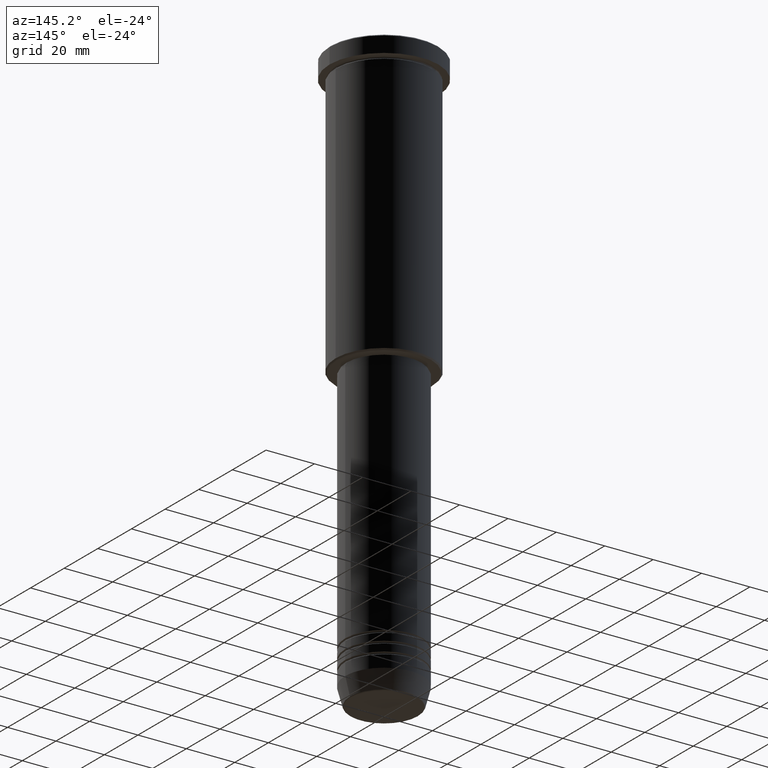
[diagram: clean part render]
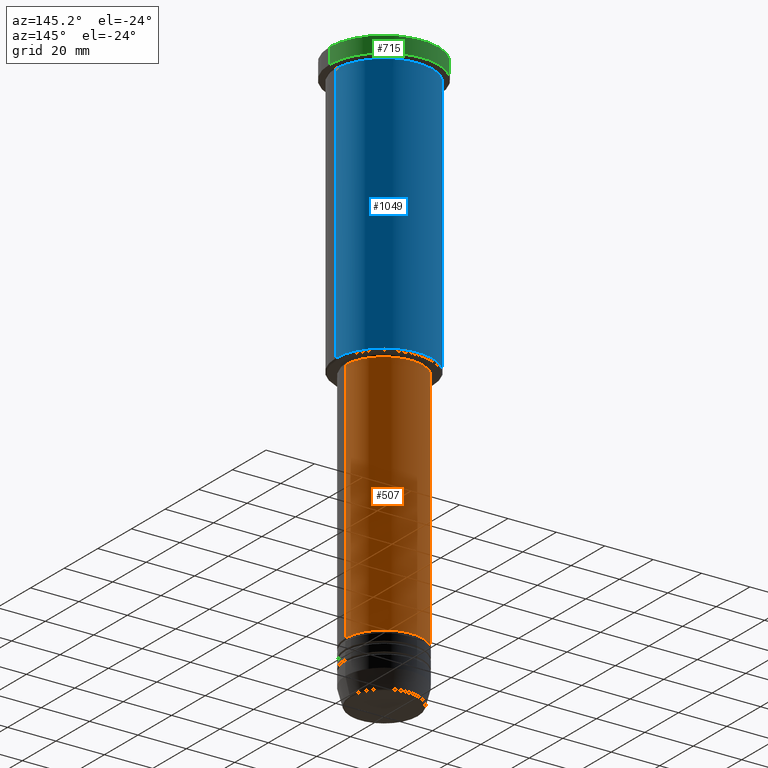
[diagram: same view with three faces highlighted in distinct colors, each labeled with its STEP entity id]
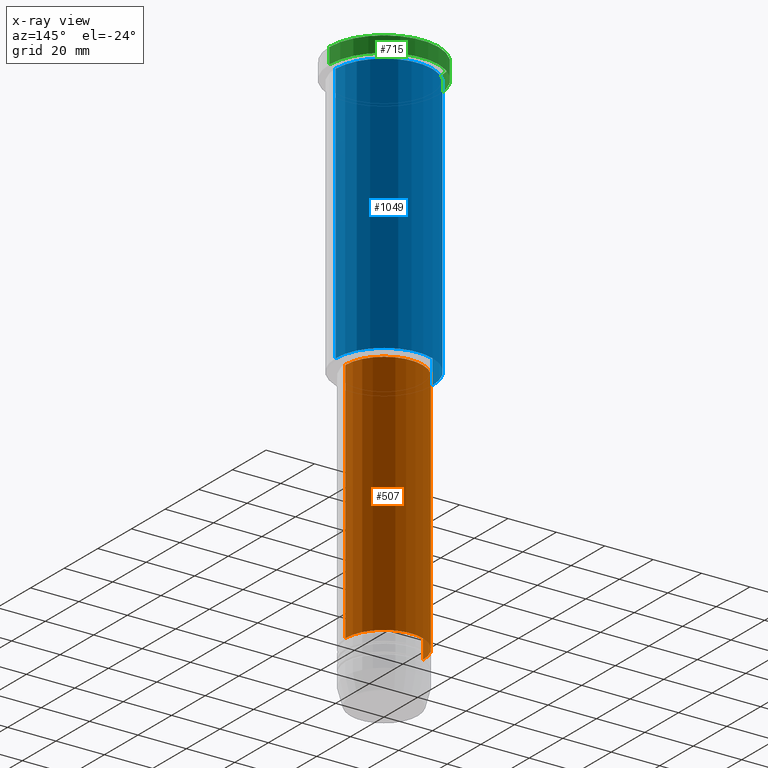
[diagram: x-ray of the same camera — body ghosted, the three highlighted faces saturated]
A machine part, auxiliary view with three faces highlighted in distinct colors.
The next image is the same camera in x-ray (body ghosted, the three faces saturated) — at least one of them is partly hidden behind the body in this view.
Their STEP definitions:

[orange] entity #507 — the highlighted cylindrical surface (partial cylindrical patch) has radius 16 mm, axis along (-0, -0, 1).
#19 = DIRECTION ( 'NONE',  ( -0.000000000000000000, -0.000000000000000000, 1.000000000000000000 ) ) ;
#36 = LINE ( 'NONE', #214, #765 ) ;
#38 = CYLINDRICAL_SURFACE ( 'NONE', #862, 16.00000000000000000 ) ;
#43 = FACE_OUTER_BOUND ( 'NONE', #1123, .T. ) ;
#47 = DIRECTION ( 'NONE',  ( -0.000000000000000000, -0.000000000000000000, 1.000000000000000000 ) ) ;
#63 = ORIENTED_EDGE ( 'NONE', *, *, #977, .F. ) ;
#85 = ORIENTED_EDGE ( 'NONE', *, *, #615, .T. ) ;
#100 = VERTEX_POINT ( 'NONE', #1014 ) ;
#120 = ORIENTED_EDGE ( 'NONE', *, *, #738, .F. ) ;
#143 = LINE ( 'NONE', #511, #1061 ) ;
#145 = AXIS2_PLACEMENT_3D ( 'NONE', #632, #987, #177 ) ;
#177 = DIRECTION ( 'NONE',  ( 1.000000000000000000, 0.000000000000000000, 0.000000000000000000 ) ) ;
#191 = CIRCLE ( 'NONE', #817, 16.00000000000000000 ) ;
#214 = CARTESIAN_POINT ( 'NONE',  ( 16.00000000000000000, 0.000000000000000000, 0.000000000000000000 ) ) ;
#245 = CARTESIAN_POINT ( 'NONE',  ( 16.00000000000000000, 0.000000000000000000, -218.5000000000000000 ) ) ;
#315 = DIRECTION ( 'NONE',  ( 1.000000000000000000, 0.000000000000000000, 0.000000000000000000 ) ) ;
#378 = CIRCLE ( 'NONE', #145, 16.00000000000000000 ) ;
#417 = CARTESIAN_POINT ( 'NONE',  ( -16.00000000000000000, 1.959434878635765131E-15, -218.5000000000000000 ) ) ;
#507 = ADVANCED_FACE ( 'NONE', ( #43 ), #38, .T. ) ;
#511 = CARTESIAN_POINT ( 'NONE',  ( -16.00000000000000000, 1.959434878635765131E-15, 0.000000000000000000 ) ) ;
#537 = VERTEX_POINT ( 'NONE', #417 ) ;
#543 = CARTESIAN_POINT ( 'NONE',  ( 16.00000000000000000, 0.000000000000000000, -117.0000000000000142 ) ) ;
#552 = DIRECTION ( 'NONE',  ( 1.000000000000000000, 0.000000000000000000, 0.000000000000000000 ) ) ;
#557 = VERTEX_POINT ( 'NONE', #245 ) ;
#615 = EDGE_CURVE ( 'NONE', #537, #100, #143, .T. ) ;
#632 = CARTESIAN_POINT ( 'NONE',  ( 0.000000000000000000, 0.000000000000000000, -117.0000000000000142 ) ) ;
#642 = DIRECTION ( 'NONE',  ( -0.000000000000000000, -0.000000000000000000, 1.000000000000000000 ) ) ;
#689 = DIRECTION ( 'NONE',  ( -0.000000000000000000, -0.000000000000000000, 1.000000000000000000 ) ) ;
#738 = EDGE_CURVE ( 'NONE', #745, #100, #378, .T. ) ;
#741 = CARTESIAN_POINT ( 'NONE',  ( 0.000000000000000000, 0.000000000000000000, -218.5000000000000000 ) ) ;
#745 = VERTEX_POINT ( 'NONE', #543 ) ;
#765 = VECTOR ( 'NONE', #19, 1000.000000000000000 ) ;
#817 = AXIS2_PLACEMENT_3D ( 'NONE', #741, #642, #552 ) ;
#862 = AXIS2_PLACEMENT_3D ( 'NONE', #1022, #689, #315 ) ;
#899 = EDGE_CURVE ( 'NONE', #557, #537, #191, .T. ) ;
#977 = EDGE_CURVE ( 'NONE', #557, #745, #36, .T. ) ;
#987 = DIRECTION ( 'NONE',  ( -0.000000000000000000, -0.000000000000000000, 1.000000000000000000 ) ) ;
#1014 = CARTESIAN_POINT ( 'NONE',  ( -16.00000000000000000, 1.959434878635765131E-15, -117.0000000000000142 ) ) ;
#1022 = CARTESIAN_POINT ( 'NONE',  ( 0.000000000000000000, 0.000000000000000000, 0.000000000000000000 ) ) ;
#1061 = VECTOR ( 'NONE', #47, 1000.000000000000000 ) ;
#1081 = ORIENTED_EDGE ( 'NONE', *, *, #899, .T. ) ;
#1123 = EDGE_LOOP ( 'NONE', ( #1081, #85, #120, #63 ) ) ;

[blue] entity #1049 — the highlighted cylindrical surface (partial cylindrical patch) has radius 20 mm, axis along (-0, -0, 1).
#12 = VECTOR ( 'NONE', #613, 1000.000000000000000 ) ;
#40 = ORIENTED_EDGE ( 'NONE', *, *, #385, .F. ) ;
#42 = CARTESIAN_POINT ( 'NONE',  ( 20.00000000000000355, 0.000000000000000000, -115.4999999999999858 ) ) ;
#48 = DIRECTION ( 'NONE',  ( -0.000000000000000000, -0.000000000000000000, 1.000000000000000000 ) ) ;
#125 = FACE_OUTER_BOUND ( 'NONE', #864, .T. ) ;
#144 = AXIS2_PLACEMENT_3D ( 'NONE', #852, #1034, #1044 ) ;
#147 = CARTESIAN_POINT ( 'NONE',  ( 20.00000000000000000, 0.000000000000000000, -7.999999999999994671 ) ) ;
#172 = VECTOR ( 'NONE', #48, 1000.000000000000000 ) ;
#207 = VERTEX_POINT ( 'NONE', #768 ) ;
#212 = ORIENTED_EDGE ( 'NONE', *, *, #403, .T. ) ;
#262 = EDGE_CURVE ( 'NONE', #956, #931, #382, .T. ) ;
#382 = CIRCLE ( 'NONE', #646, 20.00000000000000355 ) ;
#385 = EDGE_CURVE ( 'NONE', #956, #1069, #702, .T. ) ;
#403 = EDGE_CURVE ( 'NONE', #931, #207, #598, .T. ) ;
#471 = ORIENTED_EDGE ( 'NONE', *, *, #492, .F. ) ;
#483 = DIRECTION ( 'NONE',  ( -1.000000000000000000, 0.000000000000000000, 0.000000000000000000 ) ) ;
#487 = DIRECTION ( 'NONE',  ( -0.000000000000000000, -0.000000000000000000, 1.000000000000000000 ) ) ;
#492 = EDGE_CURVE ( 'NONE', #1069, #207, #1130, .T. ) ;
#508 = CARTESIAN_POINT ( 'NONE',  ( 0.000000000000000000, 0.000000000000000000, -115.4999999999999858 ) ) ;
#586 = CARTESIAN_POINT ( 'NONE',  ( 0.000000000000000000, 0.000000000000000000, 0.000000000000000000 ) ) ;
#594 = DIRECTION ( 'NONE',  ( 1.000000000000000000, 0.000000000000000000, 0.000000000000000000 ) ) ;
#598 = LINE ( 'NONE', #793, #172 ) ;
#613 = DIRECTION ( 'NONE',  ( -0.000000000000000000, -0.000000000000000000, 1.000000000000000000 ) ) ;
#646 = AXIS2_PLACEMENT_3D ( 'NONE', #508, #1017, #483 ) ;
#674 = CARTESIAN_POINT ( 'NONE',  ( -20.00000000000000355, 2.449293598294706907E-15, -115.4999999999999858 ) ) ;
#702 = LINE ( 'NONE', #815, #12 ) ;
#768 = CARTESIAN_POINT ( 'NONE',  ( -20.00000000000000000, 2.449293598294706513E-15, -7.999999999999994671 ) ) ;
#793 = CARTESIAN_POINT ( 'NONE',  ( -20.00000000000000355, 2.449293598294706907E-15, 0.000000000000000000 ) ) ;
#815 = CARTESIAN_POINT ( 'NONE',  ( 20.00000000000000355, 0.000000000000000000, 0.000000000000000000 ) ) ;
#852 = CARTESIAN_POINT ( 'NONE',  ( 0.000000000000000000, 0.000000000000000000, -7.999999999999994671 ) ) ;
#864 = EDGE_LOOP ( 'NONE', ( #1153, #212, #471, #40 ) ) ;
#931 = VERTEX_POINT ( 'NONE', #674 ) ;
#956 = VERTEX_POINT ( 'NONE', #42 ) ;
#1017 = DIRECTION ( 'NONE',  ( -0.000000000000000000, -0.000000000000000000, 1.000000000000000000 ) ) ;
#1028 = CYLINDRICAL_SURFACE ( 'NONE', #1042, 20.00000000000000355 ) ;
#1034 = DIRECTION ( 'NONE',  ( -0.000000000000000000, -0.000000000000000000, 1.000000000000000000 ) ) ;
#1042 = AXIS2_PLACEMENT_3D ( 'NONE', #586, #487, #594 ) ;
#1044 = DIRECTION ( 'NONE',  ( 1.000000000000000000, 0.000000000000000000, 0.000000000000000000 ) ) ;
#1049 = ADVANCED_FACE ( 'NONE', ( #125 ), #1028, .T. ) ;
#1069 = VERTEX_POINT ( 'NONE', #147 ) ;
#1130 = CIRCLE ( 'NONE', #144, 20.00000000000000000 ) ;
#1153 = ORIENTED_EDGE ( 'NONE', *, *, #262, .T. ) ;

[green] entity #715 — the highlighted cylindrical surface (partial cylindrical patch) has radius 22.5 mm, axis along (-0, -0, 1).
#7 = LINE ( 'NONE', #461, #535 ) ;
#34 = ORIENTED_EDGE ( 'NONE', *, *, #413, .T. ) ;
#53 = CARTESIAN_POINT ( 'NONE',  ( 22.50000000000000000, 0.000000000000000000, -0.5000000000000490719 ) ) ;
#59 = AXIS2_PLACEMENT_3D ( 'NONE', #153, #796, #1059 ) ;
#65 = DIRECTION ( 'NONE',  ( -0.000000000000000000, -0.000000000000000000, 1.000000000000000000 ) ) ;
#76 = FACE_OUTER_BOUND ( 'NONE', #1084, .T. ) ;
#97 = EDGE_CURVE ( 'NONE', #545, #587, #7, .T. ) ;
#150 = EDGE_CURVE ( 'NONE', #441, #587, #209, .T. ) ;
#153 = CARTESIAN_POINT ( 'NONE',  ( 0.000000000000000000, 0.000000000000000000, 0.000000000000000000 ) ) ;
#209 = CIRCLE ( 'NONE', #759, 22.50000000000000000 ) ;
#235 = DIRECTION ( 'NONE',  ( 1.000000000000000000, 0.000000000000000000, 0.000000000000000000 ) ) ;
#299 = DIRECTION ( 'NONE',  ( -0.000000000000000000, -0.000000000000000000, 1.000000000000000000 ) ) ;
#312 = ORIENTED_EDGE ( 'NONE', *, *, #150, .T. ) ;
#351 = VERTEX_POINT ( 'NONE', #449 ) ;
#359 = CYLINDRICAL_SURFACE ( 'NONE', #59, 22.50000000000000000 ) ;
#387 = CARTESIAN_POINT ( 'NONE',  ( -22.50000000000000000, 2.755455298081544778E-15, 0.000000000000000000 ) ) ;
#411 = CARTESIAN_POINT ( 'NONE',  ( 0.000000000000000000, 0.000000000000000000, -0.5000000000000490719 ) ) ;
#413 = EDGE_CURVE ( 'NONE', #545, #351, #907, .T. ) ;
#441 = VERTEX_POINT ( 'NONE', #777 ) ;
#449 = CARTESIAN_POINT ( 'NONE',  ( -22.50000000000000000, 2.755455298081544778E-15, -6.999999999999995559 ) ) ;
#461 = CARTESIAN_POINT ( 'NONE',  ( 22.50000000000000000, 0.000000000000000000, 0.000000000000000000 ) ) ;
#514 = CARTESIAN_POINT ( 'NONE',  ( 22.50000000000000000, 0.000000000000000000, -6.999999999999995559 ) ) ;
#535 = VECTOR ( 'NONE', #1096, 1000.000000000000000 ) ;
#545 = VERTEX_POINT ( 'NONE', #514 ) ;
#562 = LINE ( 'NONE', #387, #1077 ) ;
#587 = VERTEX_POINT ( 'NONE', #53 ) ;
#715 = ADVANCED_FACE ( 'NONE', ( #76 ), #359, .T. ) ;
#759 = AXIS2_PLACEMENT_3D ( 'NONE', #411, #866, #1109 ) ;
#761 = AXIS2_PLACEMENT_3D ( 'NONE', #1054, #65, #235 ) ;
#777 = CARTESIAN_POINT ( 'NONE',  ( -22.50000000000000000, 2.755455298081544778E-15, -0.5000000000000490719 ) ) ;
#796 = DIRECTION ( 'NONE',  ( -0.000000000000000000, -0.000000000000000000, 1.000000000000000000 ) ) ;
#866 = DIRECTION ( 'NONE',  ( 0.000000000000000000, 0.000000000000000000, -1.000000000000000000 ) ) ;
#907 = CIRCLE ( 'NONE', #761, 22.50000000000000000 ) ;
#909 = EDGE_CURVE ( 'NONE', #351, #441, #562, .T. ) ;
#1024 = ORIENTED_EDGE ( 'NONE', *, *, #97, .F. ) ;
#1048 = ORIENTED_EDGE ( 'NONE', *, *, #909, .T. ) ;
#1054 = CARTESIAN_POINT ( 'NONE',  ( 0.000000000000000000, 0.000000000000000000, -6.999999999999995559 ) ) ;
#1059 = DIRECTION ( 'NONE',  ( 1.000000000000000000, 0.000000000000000000, 0.000000000000000000 ) ) ;
#1077 = VECTOR ( 'NONE', #299, 1000.000000000000000 ) ;
#1084 = EDGE_LOOP ( 'NONE', ( #34, #1048, #312, #1024 ) ) ;
#1096 = DIRECTION ( 'NONE',  ( -0.000000000000000000, -0.000000000000000000, 1.000000000000000000 ) ) ;
#1109 = DIRECTION ( 'NONE',  ( 1.000000000000000000, 0.000000000000000000, 0.000000000000000000 ) ) ;